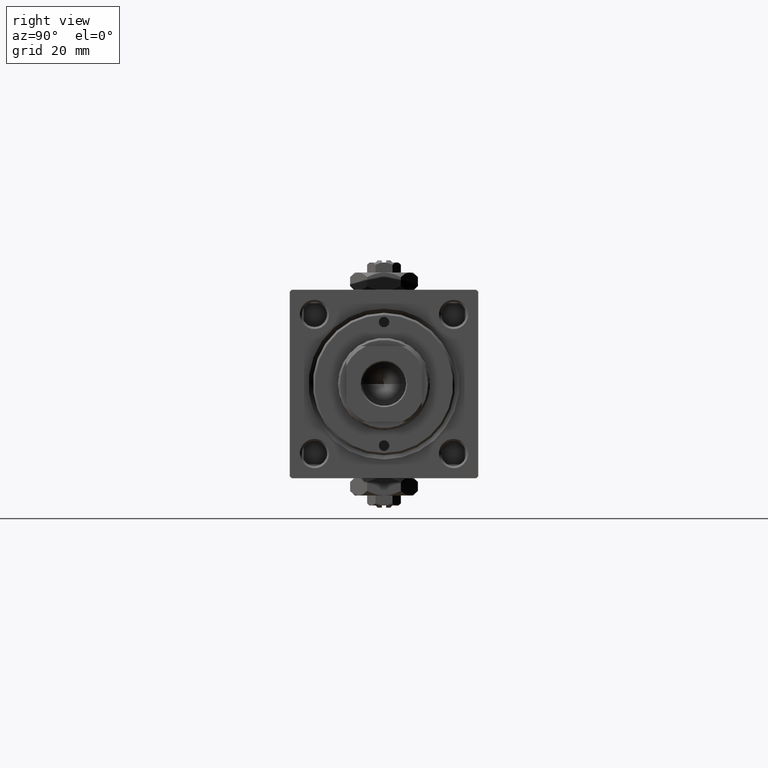
[diagram: clean part render]
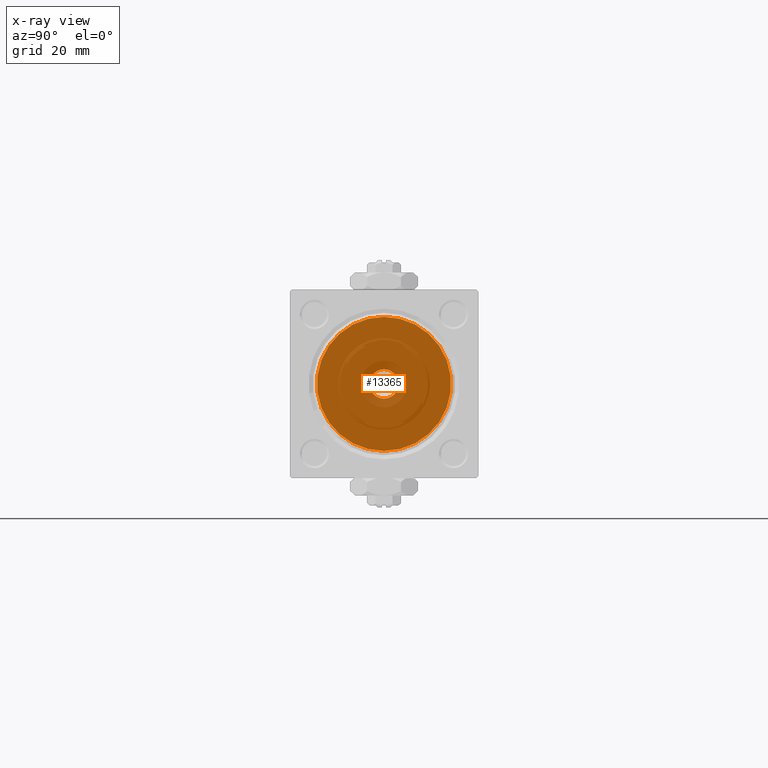
[diagram: x-ray — body ghosted, one internal face saturated and labeled with its STEP entity id]
A machine part, right view, then the same camera in x-ray: the body is ghosted and one INTERNAL B-rep face — a face not visible from any outside direction — is saturated and labeled: STEP entity #13365.
In plain terms, the highlighted planar face has unit normal (-1, 0, 0).
Its self-contained STEP definition (entity closure, byte-faithful):
#585 = CARTESIAN_POINT ( 'NONE',  ( 24.99999999999999289, 4.286263797015736595E-16, -3.500000000000000000 ) ) ;
#1625 = CIRCLE ( 'NONE', #10046, 16.00000000000000000 ) ;
#3165 = EDGE_CURVE ( 'NONE', #19990, #47556, #41118, .T. ) ;
#5095 = FACE_OUTER_BOUND ( 'NONE', #38076, .T. ) ;
#5597 = CARTESIAN_POINT ( 'NONE',  ( 25.00000000000000000, -6.426503353294456087E-16, -16.00000000000000000 ) ) ;
#6241 = DIRECTION ( 'NONE',  ( 0.000000000000000000, 0.000000000000000000, -1.000000000000000000 ) ) ;
#8268 = DIRECTION ( 'NONE',  ( -0.000000000000000000, 0.000000000000000000, 1.000000000000000000 ) ) ;
#9338 = FACE_BOUND ( 'NONE', #28186, .T. ) ;
#9855 = VERTEX_POINT ( 'NONE', #51684 ) ;
#10046 = AXIS2_PLACEMENT_3D ( 'NONE', #30864, #46995, #6241 ) ;
#13365 = ADVANCED_FACE ( 'NONE', ( #9338, #5095 ), #21239, .F. ) ;
#17477 = EDGE_CURVE ( 'NONE', #47556, #19990, #20116, .T. ) ;
#18418 = AXIS2_PLACEMENT_3D ( 'NONE', #39662, #31476, #24023 ) ;
#19990 = VERTEX_POINT ( 'NONE', #23745 ) ;
#20116 = CIRCLE ( 'NONE', #18418, 3.500000000000000000 ) ;
#21239 = PLANE ( 'NONE',  #47267 ) ;
#22904 = ORIENTED_EDGE ( 'NONE', *, *, #3165, .T. ) ;
#23745 = CARTESIAN_POINT ( 'NONE',  ( 24.99999999999999289, 0.000000000000000000, 3.500000000000000000 ) ) ;
#24023 = DIRECTION ( 'NONE',  ( 0.000000000000000000, 0.000000000000000000, 1.000000000000000000 ) ) ;
#24160 = DIRECTION ( 'NONE',  ( -1.000000000000000000, 0.000000000000000000, -0.000000000000000000 ) ) ;
#25721 = AXIS2_PLACEMENT_3D ( 'NONE', #32330, #51441, #31350 ) ;
#28186 = EDGE_LOOP ( 'NONE', ( #22904, #38289 ) ) ;
#28740 = VERTEX_POINT ( 'NONE', #5597 ) ;
#30864 = CARTESIAN_POINT ( 'NONE',  ( 25.00000000000000000, -2.602085213965210642E-15, 0.000000000000000000 ) ) ;
#31350 = DIRECTION ( 'NONE',  ( 0.000000000000000000, 0.000000000000000000, -1.000000000000000000 ) ) ;
#31476 = DIRECTION ( 'NONE',  ( -1.000000000000000000, 0.000000000000000000, -0.000000000000000000 ) ) ;
#32330 = CARTESIAN_POINT ( 'NONE',  ( 25.00000000000000000, -2.602085213965210642E-15, 0.000000000000000000 ) ) ;
#34060 = EDGE_CURVE ( 'NONE', #9855, #28740, #41787, .T. ) ;
#35072 = ORIENTED_EDGE ( 'NONE', *, *, #42500, .T. ) ;
#37391 = CARTESIAN_POINT ( 'NONE',  ( 25.00000000000000000, 0.000000000000000000, 0.000000000000000000 ) ) ;
#38076 = EDGE_LOOP ( 'NONE', ( #49713, #35072 ) ) ;
#38289 = ORIENTED_EDGE ( 'NONE', *, *, #17477, .T. ) ;
#39415 = AXIS2_PLACEMENT_3D ( 'NONE', #47488, #24160, #52223 ) ;
#39662 = CARTESIAN_POINT ( 'NONE',  ( 24.99999999999999289, 0.000000000000000000, 0.000000000000000000 ) ) ;
#40293 = DIRECTION ( 'NONE',  ( -1.000000000000000000, 0.000000000000000000, -0.000000000000000000 ) ) ;
#41118 = CIRCLE ( 'NONE', #39415, 3.500000000000000000 ) ;
#41787 = CIRCLE ( 'NONE', #25721, 16.00000000000000000 ) ;
#42500 = EDGE_CURVE ( 'NONE', #28740, #9855, #1625, .T. ) ;
#46995 = DIRECTION ( 'NONE',  ( 1.000000000000000000, 0.000000000000000000, 0.000000000000000000 ) ) ;
#47267 = AXIS2_PLACEMENT_3D ( 'NONE', #37391, #40293, #8268 ) ;
#47488 = CARTESIAN_POINT ( 'NONE',  ( 24.99999999999999289, 0.000000000000000000, 0.000000000000000000 ) ) ;
#47556 = VERTEX_POINT ( 'NONE', #585 ) ;
#49713 = ORIENTED_EDGE ( 'NONE', *, *, #34060, .T. ) ;
#51441 = DIRECTION ( 'NONE',  ( 1.000000000000000000, 0.000000000000000000, 0.000000000000000000 ) ) ;
#51684 = CARTESIAN_POINT ( 'NONE',  ( 25.00000000000000000, -2.602085213965210642E-15, 16.00000000000000000 ) ) ;
#52223 = DIRECTION ( 'NONE',  ( 0.000000000000000000, 0.000000000000000000, 1.000000000000000000 ) ) ;